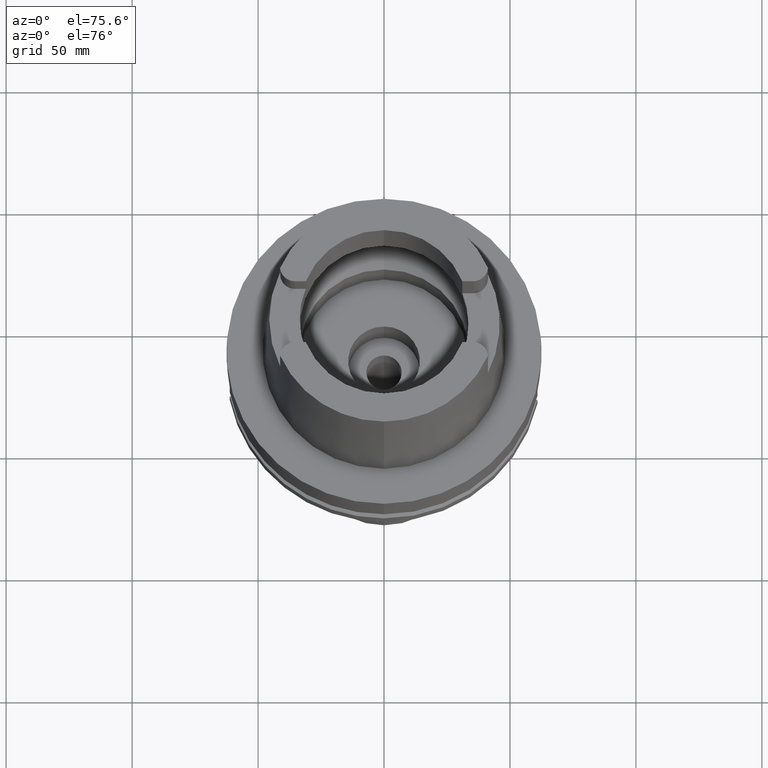
[diagram: clean part render]
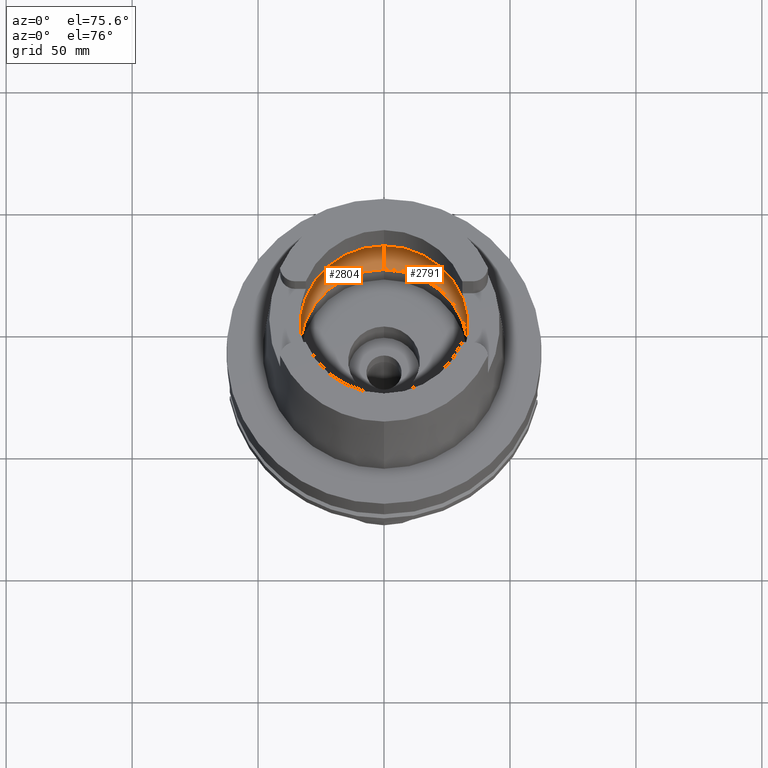
[diagram: same view with one multi-face feature highlighted, each face labeled with its STEP entity id]
A machine part, auxiliary view. The highlighted faces form ONE feature: a constant-radius fillet chain: 2 tangent blend faces with common blend radius 16 mm. The faces share edges in the B-rep.
Their STEP definitions:
[1] entity #2804 (Torus):
#459=CARTESIAN_POINT('',(0.E0,2.4E1,1.297439318958E1));
#460=DIRECTION('',(1.E0,0.E0,0.E0));
#461=DIRECTION('',(0.E0,5.937500000001E-1,-8.046495743489E-1));
#462=AXIS2_PLACEMENT_3D('',#459,#460,#461);
#483=CARTESIAN_POINT('',(0.E0,0.E0,9.999999999754E-2));
#484=DIRECTION('',(0.E0,0.E0,1.E0));
#485=DIRECTION('',(0.E0,1.E0,0.E0));
#486=AXIS2_PLACEMENT_3D('',#483,#484,#485);
#491=CARTESIAN_POINT('',(0.E0,-2.4E1,1.297439318958E1));
#492=DIRECTION('',(-1.E0,0.E0,0.E0));
#493=DIRECTION('',(0.E0,-5.937500000001E-1,-8.046495743489E-1));
#494=AXIS2_PLACEMENT_3D('',#491,#492,#493);
#499=CARTESIAN_POINT('',(0.E0,0.E0,1.297439318958E1));
#500=DIRECTION('',(0.E0,0.E0,-1.E0));
#501=DIRECTION('',(0.E0,-1.E0,0.E0));
#502=AXIS2_PLACEMENT_3D('',#499,#500,#501);
#2193=CARTESIAN_POINT('',(0.E0,4.E1,1.297439318958E1));
#2194=VERTEX_POINT('',#2193);
#2195=CARTESIAN_POINT('',(0.E0,-4.E1,1.297439318958E1));
#2196=VERTEX_POINT('',#2195);
#2197=CARTESIAN_POINT('',(0.E0,3.35E1,9.999999999755E-2));
#2198=VERTEX_POINT('',#2197);
#2199=CARTESIAN_POINT('',(0.E0,-3.35E1,9.999999999755E-2));
#2200=VERTEX_POINT('',#2199);
#2792=CARTESIAN_POINT('',(0.E0,0.E0,1.297439318958E1));
#2793=DIRECTION('',(0.E0,0.E0,-1.E0));
#2794=DIRECTION('',(0.E0,-1.E0,0.E0));
#2795=AXIS2_PLACEMENT_3D('',#2792,#2793,#2794);
#2796=TOROIDAL_SURFACE('',#2795,2.4E1,1.6E1);
#2797=ORIENTED_EDGE('',*,*,#2782,.F.);
#2799=ORIENTED_EDGE('',*,*,#2798,.T.);
#2800=ORIENTED_EDGE('',*,*,#2785,.T.);
#2801=ORIENTED_EDGE('',*,*,#2756,.T.);
#2802=EDGE_LOOP('',(#2797,#2799,#2800,#2801));
#2803=FACE_OUTER_BOUND('',#2802,.F.);
#463=CIRCLE('',#462,1.6E1);
#487=CIRCLE('',#486,3.35E1);
#495=CIRCLE('',#494,1.6E1);
#503=CIRCLE('',#502,4.E1);
#2756=EDGE_CURVE('',#2196,#2194,#503,.T.);
#2782=EDGE_CURVE('',#2198,#2194,#463,.T.);
#2785=EDGE_CURVE('',#2200,#2196,#495,.T.);
#2798=EDGE_CURVE('',#2198,#2200,#487,.T.);
#2804=ADVANCED_FACE('',(#2803),#2796,.F.);
[2] entity #2791 (Torus):
#459=CARTESIAN_POINT('',(0.E0,2.4E1,1.297439318958E1));
#460=DIRECTION('',(1.E0,0.E0,0.E0));
#461=DIRECTION('',(0.E0,5.937500000001E-1,-8.046495743489E-1));
#462=AXIS2_PLACEMENT_3D('',#459,#460,#461);
#467=CARTESIAN_POINT('',(0.E0,0.E0,1.297439318958E1));
#468=DIRECTION('',(0.E0,0.E0,-1.E0));
#469=DIRECTION('',(0.E0,1.E0,0.E0));
#470=AXIS2_PLACEMENT_3D('',#467,#468,#469);
#475=CARTESIAN_POINT('',(0.E0,0.E0,9.999999999754E-2));
#476=DIRECTION('',(0.E0,0.E0,1.E0));
#477=DIRECTION('',(0.E0,-1.E0,0.E0));
#478=AXIS2_PLACEMENT_3D('',#475,#476,#477);
#491=CARTESIAN_POINT('',(0.E0,-2.4E1,1.297439318958E1));
#492=DIRECTION('',(-1.E0,0.E0,0.E0));
#493=DIRECTION('',(0.E0,-5.937500000001E-1,-8.046495743489E-1));
#494=AXIS2_PLACEMENT_3D('',#491,#492,#493);
#2193=CARTESIAN_POINT('',(0.E0,4.E1,1.297439318958E1));
#2194=VERTEX_POINT('',#2193);
#2195=CARTESIAN_POINT('',(0.E0,-4.E1,1.297439318958E1));
#2196=VERTEX_POINT('',#2195);
#2197=CARTESIAN_POINT('',(0.E0,3.35E1,9.999999999755E-2));
#2198=VERTEX_POINT('',#2197);
#2199=CARTESIAN_POINT('',(0.E0,-3.35E1,9.999999999755E-2));
#2200=VERTEX_POINT('',#2199);
#2777=CARTESIAN_POINT('',(0.E0,0.E0,1.297439318958E1));
#2778=DIRECTION('',(0.E0,0.E0,-1.E0));
#2779=DIRECTION('',(0.E0,-1.E0,0.E0));
#2780=AXIS2_PLACEMENT_3D('',#2777,#2778,#2779);
#2781=TOROIDAL_SURFACE('',#2780,2.4E1,1.6E1);
#2783=ORIENTED_EDGE('',*,*,#2782,.T.);
#2784=ORIENTED_EDGE('',*,*,#2772,.T.);
#2786=ORIENTED_EDGE('',*,*,#2785,.F.);
#2788=ORIENTED_EDGE('',*,*,#2787,.T.);
#2789=EDGE_LOOP('',(#2783,#2784,#2786,#2788));
#2790=FACE_OUTER_BOUND('',#2789,.F.);
#463=CIRCLE('',#462,1.6E1);
#471=CIRCLE('',#470,4.E1);
#479=CIRCLE('',#478,3.35E1);
#495=CIRCLE('',#494,1.6E1);
#2772=EDGE_CURVE('',#2194,#2196,#471,.T.);
#2782=EDGE_CURVE('',#2198,#2194,#463,.T.);
#2785=EDGE_CURVE('',#2200,#2196,#495,.T.);
#2787=EDGE_CURVE('',#2200,#2198,#479,.T.);
#2791=ADVANCED_FACE('',(#2790),#2781,.F.);